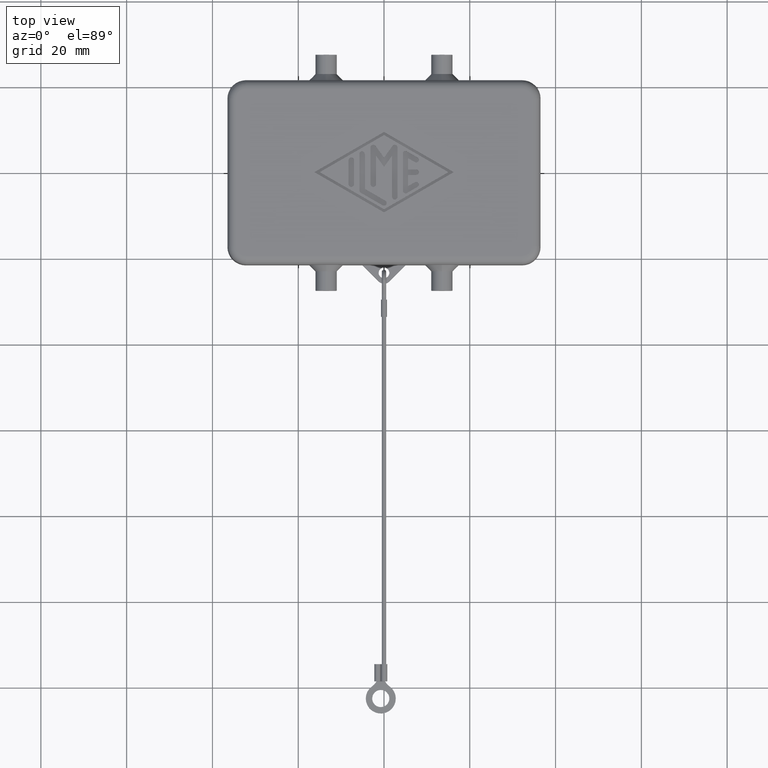
[diagram: clean part render]
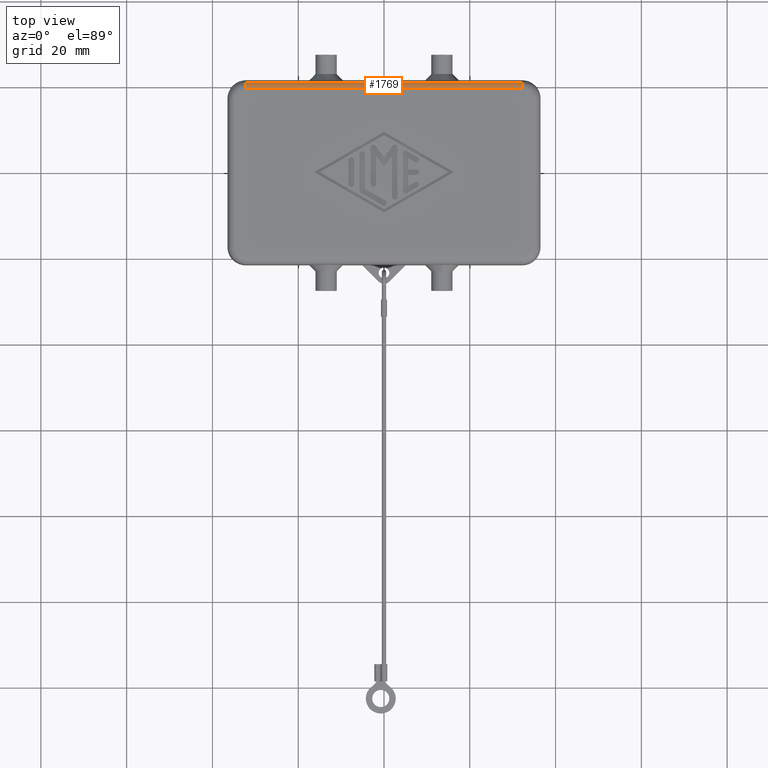
[diagram: same view with one face highlighted and labeled with its STEP entity id]
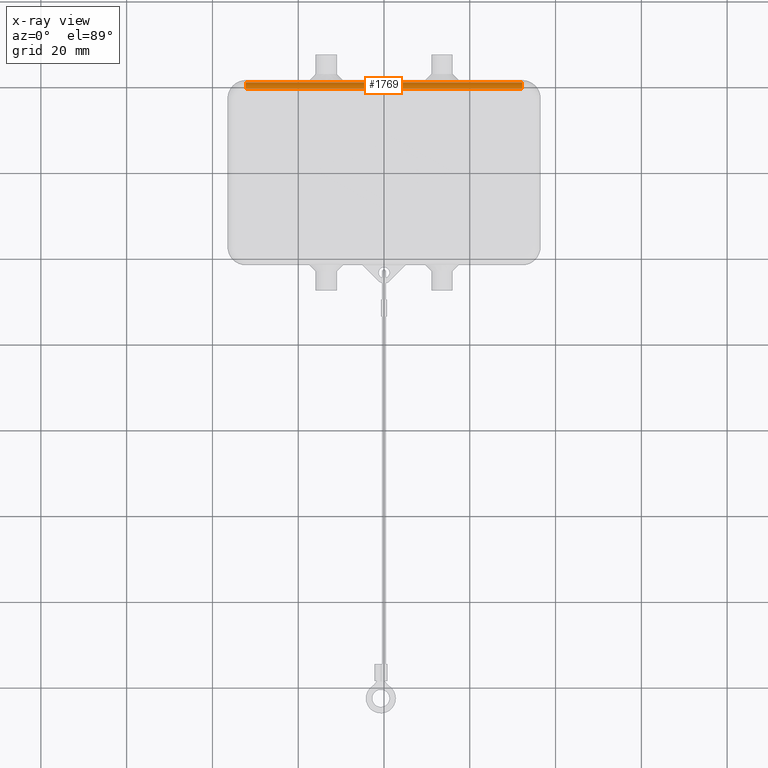
[diagram: x-ray of the same camera — body ghosted, the highlighted face saturated]
A machine part, top view. The second image highlights one B-rep face of the part: STEP entity #1769.
The next image is the same camera in x-ray: the body ghosted, the highlighted face saturated — about 0% of this face is hidden behind the body in this view.
In plain terms, the highlighted cylindrical surface (edge-blend (fillet) strip) has radius 2 mm, axis along (1, 0, 0).
Its self-contained STEP definition (entity closure, byte-faithful):
#1728=CARTESIAN_POINT('',(-18.250000000000000,19.500000000000000,10.000000000000002));
#1729=DIRECTION('',(1.0,0.0,0.0));
#1730=DIRECTION('',(0.0,0.707106781186548,0.707106781186548));
#1731=AXIS2_PLACEMENT_3D('',#1728,#1729,#1730);
#1732=CYLINDRICAL_SURFACE('',#1731,2.000000000000000);
#1733=CARTESIAN_POINT('',(-32.200000000000003,20.914213562373096,11.414213562373096));
#1734=VERTEX_POINT('',#1733);
#1735=CARTESIAN_POINT('',(32.200000000000003,20.914213562373096,11.414213562373096));
#1736=VERTEX_POINT('',#1735);
#1737=CARTESIAN_POINT('',(-32.200000000000003,20.914213562373096,11.414213562373096));
#1738=DIRECTION('',(1.0,0.0,0.0));
#1739=VECTOR('',#1738,64.400000000000006);
#1740=LINE('',#1737,#1739);
#1741=EDGE_CURVE('',#1734,#1736,#1740,.T.);
#1742=ORIENTED_EDGE('',*,*,#1741,.F.);
#1743=CARTESIAN_POINT('',(-32.200000000000003,19.500000000000000,12.000000000000002));
#1744=VERTEX_POINT('',#1743);
#1745=CARTESIAN_POINT('',(-32.200000000000003,19.500000000000000,10.000000000000002));
#1746=DIRECTION('',(-1.0,0.0,0.0));
#1747=DIRECTION('',(0.0,0.0,1.0));
#1748=AXIS2_PLACEMENT_3D('',#1745,#1746,#1747);
#1749=CIRCLE('',#1748,2.000000000000000);
#1750=EDGE_CURVE('',#1744,#1734,#1749,.T.);
#1751=ORIENTED_EDGE('',*,*,#1750,.F.);
#1752=CARTESIAN_POINT('',(32.200000000000003,19.500000000000000,12.000000000000002));
#1753=VERTEX_POINT('',#1752);
#1754=CARTESIAN_POINT('',(-32.200000000000003,19.500000000000000,12.000000000000002));
#1755=DIRECTION('',(1.0,0.0,0.0));
#1756=VECTOR('',#1755,64.400000000000006);
#1757=LINE('',#1754,#1756);
#1758=EDGE_CURVE('',#1744,#1753,#1757,.T.);
#1759=ORIENTED_EDGE('',*,*,#1758,.T.);
#1760=CARTESIAN_POINT('',(32.200000000000003,19.500000000000000,10.000000000000002));
#1761=DIRECTION('',(1.0,0.0,0.0));
#1762=DIRECTION('',(0.0,1.0,0.0));
#1763=AXIS2_PLACEMENT_3D('',#1760,#1761,#1762);
#1764=CIRCLE('',#1763,2.000000000000000);
#1765=EDGE_CURVE('',#1736,#1753,#1764,.T.);
#1766=ORIENTED_EDGE('',*,*,#1765,.F.);
#1767=EDGE_LOOP('',(#1742,#1751,#1759,#1766));
#1768=FACE_OUTER_BOUND('',#1767,.T.);
#1769=ADVANCED_FACE('',(#1768),#1732,.T.);